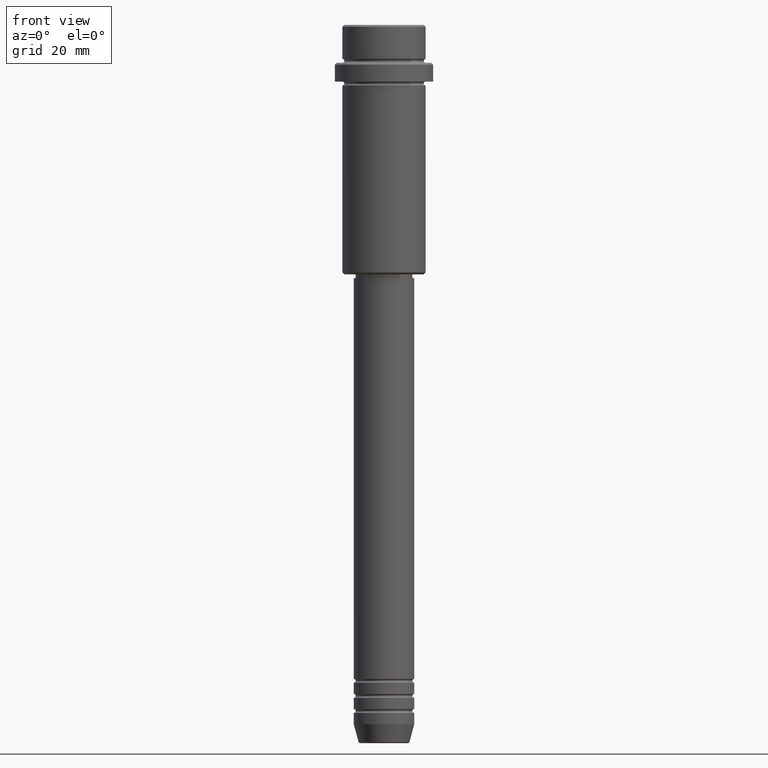
[diagram: clean part render]
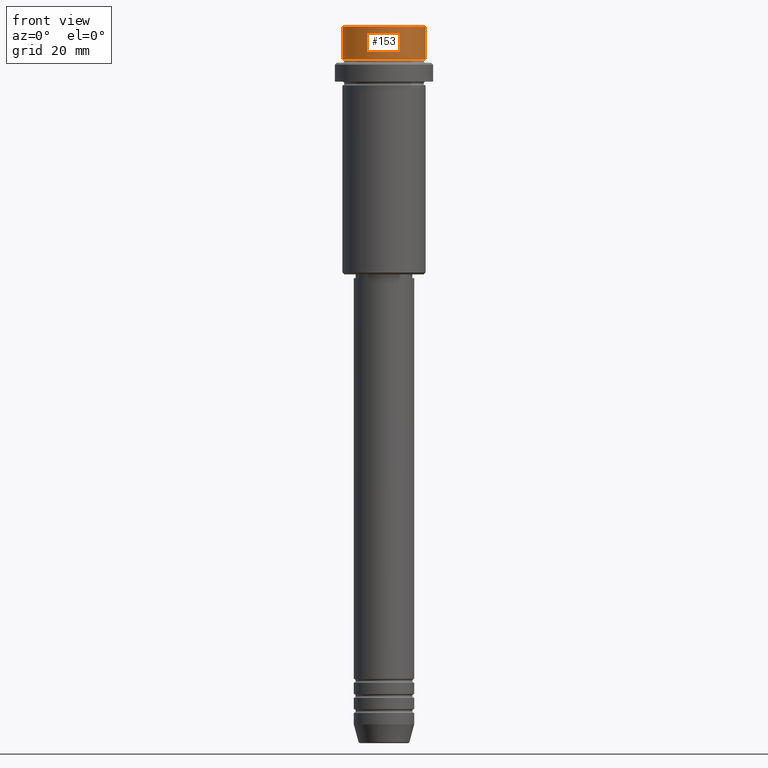
[diagram: same view with one face highlighted and labeled with its STEP entity id]
A machine part, front view. The second image highlights one B-rep face of the part: STEP entity #153.
In plain terms, the highlighted cylindrical surface (partial cylindrical patch) has radius 11 mm, axis along (-0, -0, 1).
Its self-contained STEP definition (entity closure, byte-faithful):
#20 = DIRECTION ( 'NONE',  ( -0.000000000000000000, -0.000000000000000000, 1.000000000000000000 ) ) ;
#81 = LINE ( 'NONE', #1172, #1313 ) ;
#88 = DIRECTION ( 'NONE',  ( -0.000000000000000000, -0.000000000000000000, 1.000000000000000000 ) ) ;
#123 = AXIS2_PLACEMENT_3D ( 'NONE', #366, #20, #555 ) ;
#153 = ADVANCED_FACE ( 'NONE', ( #455 ), #339, .T. ) ;
#156 = CARTESIAN_POINT ( 'NONE',  ( 0.000000000000000000, 0.000000000000000000, -9.000000000000000000 ) ) ;
#161 = VERTEX_POINT ( 'NONE', #1116 ) ;
#186 = CIRCLE ( 'NONE', #662, 10.99999999999997158 ) ;
#258 = DIRECTION ( 'NONE',  ( 0.000000000000000000, 0.000000000000000000, -1.000000000000000000 ) ) ;
#267 = DIRECTION ( 'NONE',  ( 1.000000000000000000, 0.000000000000000000, 0.000000000000000000 ) ) ;
#339 = CYLINDRICAL_SURFACE ( 'NONE', #123, 10.99999999999998757 ) ;
#366 = CARTESIAN_POINT ( 'NONE',  ( 0.000000000000000000, 0.000000000000000000, 0.000000000000000000 ) ) ;
#426 = CARTESIAN_POINT ( 'NONE',  ( -10.99999999999998757, 1.347111479062086827E-15, 0.000000000000000000 ) ) ;
#454 = EDGE_LOOP ( 'NONE', ( #645, #1236, #1247, #907 ) ) ;
#455 = FACE_OUTER_BOUND ( 'NONE', #454, .T. ) ;
#475 = EDGE_CURVE ( 'NONE', #572, #1118, #186, .T. ) ;
#532 = VERTEX_POINT ( 'NONE', #944 ) ;
#551 = EDGE_CURVE ( 'NONE', #572, #161, #633, .T. ) ;
#555 = DIRECTION ( 'NONE',  ( 1.000000000000000000, 0.000000000000000000, 0.000000000000000000 ) ) ;
#572 = VERTEX_POINT ( 'NONE', #940 ) ;
#621 = CARTESIAN_POINT ( 'NONE',  ( 10.99999999999997158, 0.000000000000000000, -9.000000000000000000 ) ) ;
#633 = LINE ( 'NONE', #426, #634 ) ;
#634 = VECTOR ( 'NONE', #833, 1000.000000000000000 ) ;
#645 = ORIENTED_EDGE ( 'NONE', *, *, #551, .F. ) ;
#662 = AXIS2_PLACEMENT_3D ( 'NONE', #156, #710, #825 ) ;
#700 = EDGE_CURVE ( 'NONE', #532, #161, #1042, .T. ) ;
#710 = DIRECTION ( 'NONE',  ( -0.000000000000000000, -0.000000000000000000, 1.000000000000000000 ) ) ;
#748 = EDGE_CURVE ( 'NONE', #1118, #532, #81, .T. ) ;
#803 = CARTESIAN_POINT ( 'NONE',  ( 0.000000000000000000, 0.000000000000000000, -0.4999999999999882871 ) ) ;
#825 = DIRECTION ( 'NONE',  ( 1.000000000000000000, 0.000000000000000000, 0.000000000000000000 ) ) ;
#833 = DIRECTION ( 'NONE',  ( -0.000000000000000000, -0.000000000000000000, 1.000000000000000000 ) ) ;
#907 = ORIENTED_EDGE ( 'NONE', *, *, #700, .T. ) ;
#940 = CARTESIAN_POINT ( 'NONE',  ( -10.99999999999997158, 1.347111479062085841E-15, -9.000000000000000000 ) ) ;
#944 = CARTESIAN_POINT ( 'NONE',  ( 10.99999999999998757, 0.000000000000000000, -0.4999999999999882871 ) ) ;
#1042 = CIRCLE ( 'NONE', #1171, 10.99999999999998757 ) ;
#1116 = CARTESIAN_POINT ( 'NONE',  ( -10.99999999999998757, 1.347111479062086827E-15, -0.4999999999999882871 ) ) ;
#1118 = VERTEX_POINT ( 'NONE', #621 ) ;
#1171 = AXIS2_PLACEMENT_3D ( 'NONE', #803, #258, #267 ) ;
#1172 = CARTESIAN_POINT ( 'NONE',  ( 10.99999999999998757, 0.000000000000000000, 0.000000000000000000 ) ) ;
#1236 = ORIENTED_EDGE ( 'NONE', *, *, #475, .T. ) ;
#1247 = ORIENTED_EDGE ( 'NONE', *, *, #748, .T. ) ;
#1313 = VECTOR ( 'NONE', #88, 1000.000000000000000 ) ;